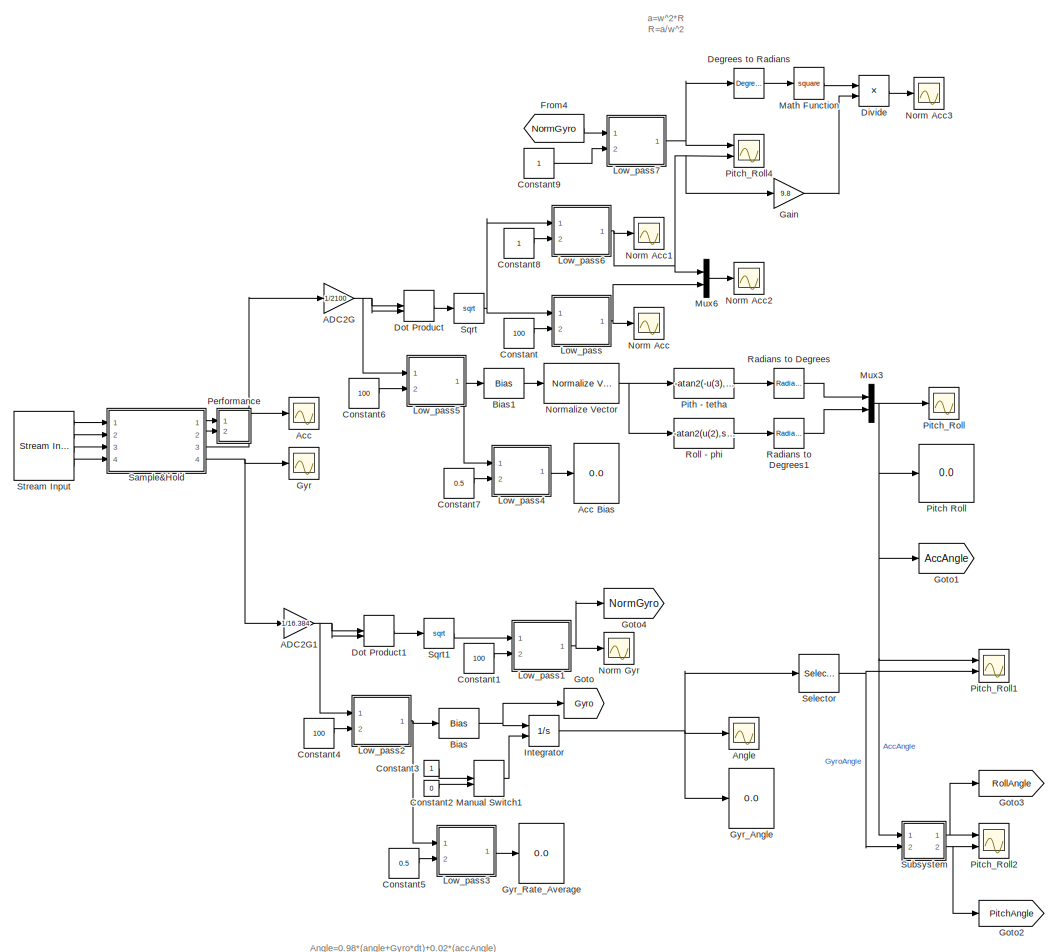
[diagram: root canvas - part 1/2, most of the canvas]
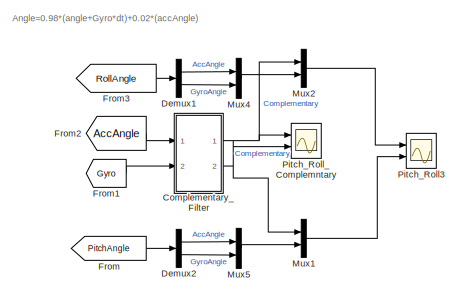
[diagram: root canvas - part 2/2, bottom center region]
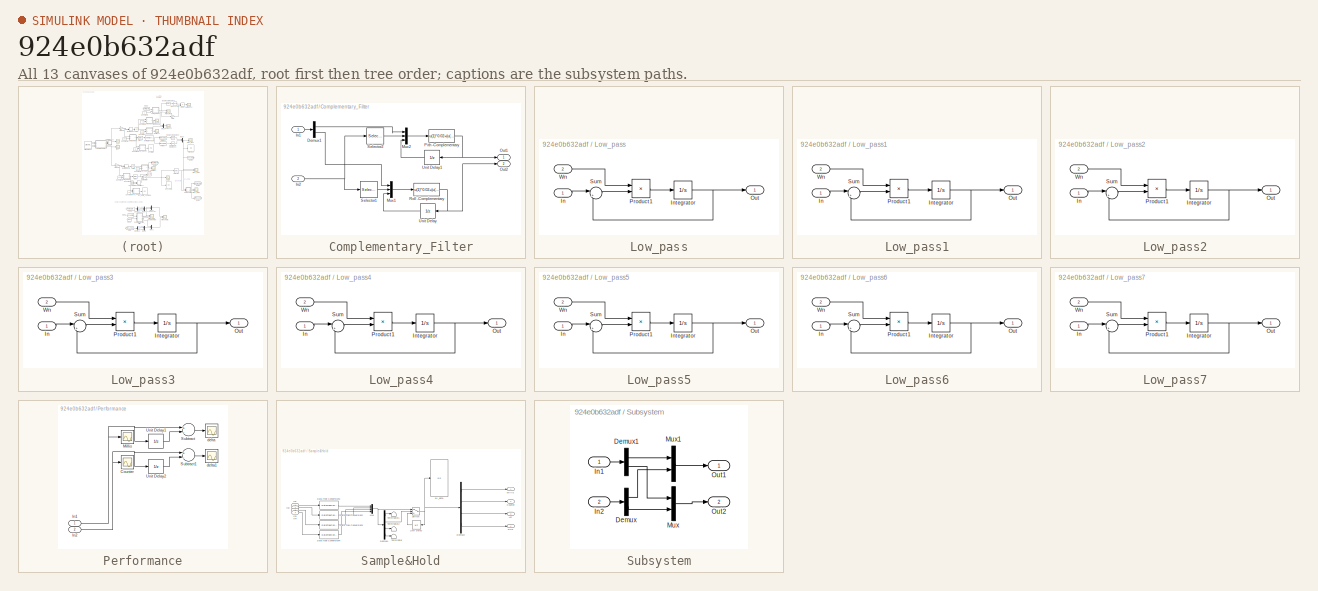
[diagram: thumbnail index - all 13 canvases of the model, root first then tree order]
MODEL slx_924e0b632adf
KIND model
CONFIG AbsTol = auto
CONFIG FixedStep = 0.002
CONFIG MaxStep = auto
CONFIG MinStep = auto
CONFIG RelTol = 1e-3
CONFIG SampleTimeConstraint = Unconstrained
CONFIG Solver = ode4
CONFIG SolverMode = Auto
CONFIG SolverName = ode4
CONFIG StartTime = 0.0
CONFIG StopTime = inf
BLOCK [Gain] ADC2G
  Gain = 1/2100
  OutDataTypeStr = Inherit: Inherit via internal rule
  ParamDataTypeStr = Inherit: Inherit via internal rule
  SaturateOnIntegerOverflow = off
BLOCK [Gain] ADC2G1
  Gain = 1/16.384
  OutDataTypeStr = Inherit: Inherit via internal rule
  ParamDataTypeStr = Inherit: Inherit via internal rule
  SaturateOnIntegerOverflow = off
BLOCK [Scope] Acc
  DataFormat = StructureWithTime
  Floating = off
  LimitDataPoints = off
  NumInputPorts = 1
  Ports = [1]
  SampleTime = 0
  TimeRange = 10
  YMax = 8300
  YMin = -8300
  ZoomMode = xonly
BLOCK [Display] Acc Bias
  Decimation = 1
  Ports = [1]
BLOCK [Scope] Angle
  DataFormat = StructureWithTime
  Floating = off
  LimitDataPoints = off
  NumInputPorts = 1
  Ports = [1]
  SampleTime = 0
  SaveName = ScopeData8
  TimeRange = 10
  YMax = 720
  YMin = -720
  ZoomMode = xonly
BLOCK [Bias] Bias
  Bias = [-5.545 -0.625 4.410]
  SaturateOnIntegerOverflow = off
BLOCK [Bias] Bias1
  Bias = [0 0.035 0.126]
  SaturateOnIntegerOverflow = off
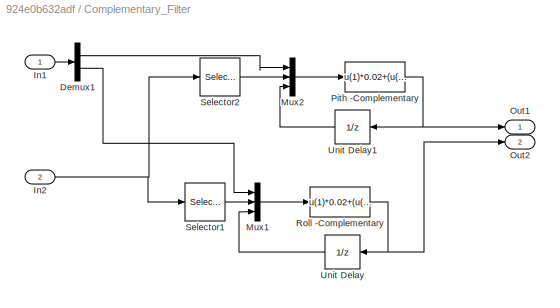
BLOCK [SubSystem] Complementary_Filter
  Ports = [2, 2]
  RequestExecContextInheritance = off
BLOCK [Demux] Complementary_Filter/Demux1
  DisplayOption = bar
  Outputs = 2
  Ports = [1, 2]
BLOCK [Inport] Complementary_Filter/In1
  IconDisplay = Port number
BLOCK [Inport] Complementary_Filter/In2
  IconDisplay = Port number
  Port = 2
BLOCK [Mux] Complementary_Filter/Mux1
  DisplayOption = bar
  Inputs = [1 1 1]
  Ports = [3, 1]
BLOCK [Mux] Complementary_Filter/Mux2
  DisplayOption = bar
  Inputs = [1 1 1]
  Ports = [3, 1]
BLOCK [Outport] Complementary_Filter/Out1
  IconDisplay = Port number
BLOCK [Outport] Complementary_Filter/Out2
  IconDisplay = Port number
  Port = 2
BLOCK [Fcn] Complementary_Filter/Pith -Complementary
  Expr = u(1)*0.02+(u(2)*0.002+u(3))*0.98
BLOCK [Fcn] Complementary_Filter/Roll -Complementary
  Expr = u(1)*0.02+(u(2)*0.002+u(3))*0.98
BLOCK [Selector] Complementary_Filter/Selector1
  Indices = [3]
  InputPortWidth = 3
  Ports = [1, 1]
BLOCK [Selector] Complementary_Filter/Selector2
  Indices = [2]
  InputPortWidth = 3
  Ports = [1, 1]
BLOCK [UnitDelay] Complementary_Filter/Unit Delay
  SampleTime = -1
BLOCK [UnitDelay] Complementary_Filter/Unit Delay1
  SampleTime = -1
BLOCK [Constant] Constant
  Value = 100
BLOCK [Constant] Constant1
  Value = 100
BLOCK [Constant] Constant2
  Value = 0
BLOCK [Constant] Constant3
BLOCK [Constant] Constant4
  Value = 100
BLOCK [Constant] Constant5
  Value = 0.5
BLOCK [Constant] Constant6
  Value = 100
BLOCK [Constant] Constant7
  Value = 0.5
BLOCK [Constant] Constant8
BLOCK [Constant] Constant9
BLOCK [Reference] Degrees to Radians  REF=simulink_extras/Transformations/Degrees to
Radians
  Ports = [1, 1]
  SourceBlock = simulink_extras/Transformations/Degrees to\nRadians
  SourceType = DegreesToRadians
BLOCK [Demux] Demux1
  DisplayOption = bar
  Outputs = 2
  Ports = [1, 2]
BLOCK [Demux] Demux2
  DisplayOption = bar
  Outputs = 2
  Ports = [1, 2]
BLOCK [Product] Divide
  InputSameDT = off
  Inputs = /*
  OutDataTypeStr = Inherit: Inherit via internal rule
  Ports = [2, 1]
  RndMeth = Floor
  SaturateOnIntegerOverflow = off
BLOCK [DotProduct] Dot Product
  OutDataTypeStr = Inherit: Inherit via internal rule
BLOCK [DotProduct] Dot Product1
  OutDataTypeStr = Inherit: Inherit via internal rule
BLOCK [From] From
  GotoTag = PitchAngle
BLOCK [From] From1
  GotoTag = Gyro
BLOCK [From] From2
  GotoTag = AccAngle
BLOCK [From] From3
  GotoTag = RollAngle
BLOCK [From] From4
  GotoTag = NormGyro
BLOCK [Gain] Gain
  Gain = 9.8
  OutDataTypeStr = Inherit: Inherit via internal rule
  ParamDataTypeStr = Inherit: Inherit via internal rule
  SaturateOnIntegerOverflow = off
BLOCK [Goto] Goto
  GotoTag = Gyro
BLOCK [Goto] Goto1
  GotoTag = AccAngle
BLOCK [Goto] Goto2
  GotoTag = PitchAngle
BLOCK [Goto] Goto3
  GotoTag = RollAngle
BLOCK [Goto] Goto4
  GotoTag = NormGyro
BLOCK [Scope] Gyr
  DataFormat = StructureWithTime
  Floating = off
  LimitDataPoints = off
  NumInputPorts = 1
  Ports = [1]
  SampleTime = 0
  SaveName = ScopeData1
  TimeRange = 10
  YMax = 35000
  YMin = -22500
  ZoomMode = xonly
BLOCK [Display] Gyr_Angle
  Decimation = 1
  Ports = [1]
BLOCK [Display] Gyr_Rate_Average
  Decimation = 1
  Ports = [1]
BLOCK [Integrator] Integrator
  ExternalReset = rising
  Ports = [2, 1]
BLOCK [SubSystem] Low_pass
  Ports = [2, 1]
  RequestExecContextInheritance = off
BLOCK [Inport] Low_pass/In
  IconDisplay = Port number
BLOCK [Integrator] Low_pass/Integrator
  Ports = [1, 1]
BLOCK [Outport] Low_pass/Out
  IconDisplay = Port number
BLOCK [Product] Low_pass/Product1
  InputSameDT = off
  OutDataTypeStr = Inherit: Inherit via internal rule
  Ports = [2, 1]
  SaturateOnIntegerOverflow = off
BLOCK [Sum] Low_pass/Sum
  IconShape = round
  InputSameDT = off
  Inputs = |+-
  OutDataTypeStr = Inherit: Inherit via internal rule
  Ports = [2, 1]
  SaturateOnIntegerOverflow = off
BLOCK [Inport] Low_pass/Wn
  IconDisplay = Port number
  Port = 2
BLOCK [SubSystem] Low_pass1
  Ports = [2, 1]
  RequestExecContextInheritance = off
BLOCK [Inport] Low_pass1/In
  IconDisplay = Port number
BLOCK [Integrator] Low_pass1/Integrator
  Ports = [1, 1]
BLOCK [Outport] Low_pass1/Out
  IconDisplay = Port number
BLOCK [Product] Low_pass1/Product1
  InputSameDT = off
  OutDataTypeStr = Inherit: Inherit via internal rule
  Ports = [2, 1]
  SaturateOnIntegerOverflow = off
BLOCK [Sum] Low_pass1/Sum
  IconShape = round
  InputSameDT = off
  Inputs = |+-
  OutDataTypeStr = Inherit: Inherit via internal rule
  Ports = [2, 1]
  SaturateOnIntegerOverflow = off
BLOCK [Inport] Low_pass1/Wn
  IconDisplay = Port number
  Port = 2
BLOCK [SubSystem] Low_pass2
  Ports = [2, 1]
  RequestExecContextInheritance = off
BLOCK [Inport] Low_pass2/In
  IconDisplay = Port number
BLOCK [Integrator] Low_pass2/Integrator
  Ports = [1, 1]
BLOCK [Outport] Low_pass2/Out
  IconDisplay = Port number
BLOCK [Product] Low_pass2/Product1
  InputSameDT = off
  OutDataTypeStr = Inherit: Inherit via internal rule
  Ports = [2, 1]
  SaturateOnIntegerOverflow = off
BLOCK [Sum] Low_pass2/Sum
  IconShape = round
  InputSameDT = off
  Inputs = |+-
  OutDataTypeStr = Inherit: Inherit via internal rule
  Ports = [2, 1]
  SaturateOnIntegerOverflow = off
BLOCK [Inport] Low_pass2/Wn
  IconDisplay = Port number
  Port = 2
BLOCK [SubSystem] Low_pass3
  Ports = [2, 1]
  RequestExecContextInheritance = off
BLOCK [Inport] Low_pass3/In
  IconDisplay = Port number
BLOCK [Integrator] Low_pass3/Integrator
  Ports = [1, 1]
BLOCK [Outport] Low_pass3/Out
  IconDisplay = Port number
BLOCK [Product] Low_pass3/Product1
  InputSameDT = off
  OutDataTypeStr = Inherit: Inherit via internal rule
  Ports = [2, 1]
  SaturateOnIntegerOverflow = off
BLOCK [Sum] Low_pass3/Sum
  IconShape = round
  InputSameDT = off
  Inputs = |+-
  OutDataTypeStr = Inherit: Inherit via internal rule
  Ports = [2, 1]
  SaturateOnIntegerOverflow = off
BLOCK [Inport] Low_pass3/Wn
  IconDisplay = Port number
  Port = 2
BLOCK [SubSystem] Low_pass4
  Ports = [2, 1]
  RequestExecContextInheritance = off
BLOCK [Inport] Low_pass4/In
  IconDisplay = Port number
BLOCK [Integrator] Low_pass4/Integrator
  Ports = [1, 1]
BLOCK [Outport] Low_pass4/Out
  IconDisplay = Port number
BLOCK [Product] Low_pass4/Product1
  InputSameDT = off
  OutDataTypeStr = Inherit: Inherit via internal rule
  Ports = [2, 1]
  SaturateOnIntegerOverflow = off
BLOCK [Sum] Low_pass4/Sum
  IconShape = round
  InputSameDT = off
  Inputs = |+-
  OutDataTypeStr = Inherit: Inherit via internal rule
  Ports = [2, 1]
  SaturateOnIntegerOverflow = off
BLOCK [Inport] Low_pass4/Wn
  IconDisplay = Port number
  Port = 2
BLOCK [SubSystem] Low_pass5
  Ports = [2, 1]
  RequestExecContextInheritance = off
BLOCK [Inport] Low_pass5/In
  IconDisplay = Port number
BLOCK [Integrator] Low_pass5/Integrator
  Ports = [1, 1]
BLOCK [Outport] Low_pass5/Out
  IconDisplay = Port number
BLOCK [Product] Low_pass5/Product1
  InputSameDT = off
  OutDataTypeStr = Inherit: Inherit via internal rule
  Ports = [2, 1]
  SaturateOnIntegerOverflow = off
BLOCK [Sum] Low_pass5/Sum
  IconShape = round
  InputSameDT = off
  Inputs = |+-
  OutDataTypeStr = Inherit: Inherit via internal rule
  Ports = [2, 1]
  SaturateOnIntegerOverflow = off
BLOCK [Inport] Low_pass5/Wn
  IconDisplay = Port number
  Port = 2
BLOCK [SubSystem] Low_pass6
  Ports = [2, 1]
  RequestExecContextInheritance = off
BLOCK [Inport] Low_pass6/In
  IconDisplay = Port number
BLOCK [Integrator] Low_pass6/Integrator
  Ports = [1, 1]
BLOCK [Outport] Low_pass6/Out
  IconDisplay = Port number
BLOCK [Product] Low_pass6/Product1
  InputSameDT = off
  OutDataTypeStr = Inherit: Inherit via internal rule
  Ports = [2, 1]
  SaturateOnIntegerOverflow = off
BLOCK [Sum] Low_pass6/Sum
  IconShape = round
  InputSameDT = off
  Inputs = |+-
  OutDataTypeStr = Inherit: Inherit via internal rule
  Ports = [2, 1]
  SaturateOnIntegerOverflow = off
BLOCK [Inport] Low_pass6/Wn
  IconDisplay = Port number
  Port = 2
BLOCK [SubSystem] Low_pass7
  Ports = [2, 1]
  RequestExecContextInheritance = off
BLOCK [Inport] Low_pass7/In
  IconDisplay = Port number
BLOCK [Integrator] Low_pass7/Integrator
  Ports = [1, 1]
BLOCK [Outport] Low_pass7/Out
  IconDisplay = Port number
BLOCK [Product] Low_pass7/Product1
  InputSameDT = off
  OutDataTypeStr = Inherit: Inherit via internal rule
  Ports = [2, 1]
  SaturateOnIntegerOverflow = off
BLOCK [Sum] Low_pass7/Sum
  IconShape = round
  InputSameDT = off
  Inputs = |+-
  OutDataTypeStr = Inherit: Inherit via internal rule
  Ports = [2, 1]
  SaturateOnIntegerOverflow = off
BLOCK [Inport] Low_pass7/Wn
  IconDisplay = Port number
  Port = 2
BLOCK [ManualSwitch] Manual Switch1
BLOCK [Math] Math Function
  Operator = square
  Ports = [1, 1]
BLOCK [Mux] Mux1
  DisplayOption = bar
  Inputs = 2
  Ports = [2, 1]
BLOCK [Mux] Mux2
  DisplayOption = bar
  Inputs = 2
  Ports = [2, 1]
BLOCK [Mux] Mux3
  DisplayOption = bar
  Inputs = 2
  Ports = [2, 1]
BLOCK [Mux] Mux4
  DisplayOption = bar
  Inputs = 2
  Ports = [2, 1]
BLOCK [Mux] Mux5
  DisplayOption = bar
  Inputs = 2
  Ports = [2, 1]
BLOCK [Mux] Mux6
  DisplayOption = bar
  Inputs = 2
  Ports = [2, 1]
BLOCK [Scope] Norm Acc
  DataFormat = StructureWithTime
  Floating = off
  LimitDataPoints = off
  NumInputPorts = 1
  Ports = [1]
  SampleTime = 0
  SaveName = ScopeData6
  TimeRange = 10
  YMax = 10
  YMin = 0
  ZoomMode = xonly
BLOCK [Scope] Norm Acc1
  DataFormat = StructureWithTime
  Floating = off
  LimitDataPoints = off
  NumInputPorts = 1
  Ports = [1]
  SampleTime = 0
  SaveName = ScopeData14
  TimeRange = 10
  YMax = 10
  YMin = 0
  ZoomMode = xonly
BLOCK [Scope] Norm Acc2
  DataFormat = StructureWithTime
  Floating = off
  LimitDataPoints = off
  NumInputPorts = 1
  Ports = [1]
  SampleTime = 0
  SaveName = ScopeData15
  TimeRange = 10
  YMax = 16
  YMin = 0
  ZoomMode = xonly
BLOCK [Scope] Norm Acc3
  DataFormat = StructureWithTime
  Floating = off
  LimitDataPoints = off
  NumInputPorts = 1
  Ports = [1]
  SampleTime = 0
  SaveName = ScopeData17
  TimeRange = 10
  YMax = 0.75
  YMin = 0
  ZoomMode = xonly
BLOCK [Scope] Norm Gyr
  DataFormat = StructureWithTime
  Floating = off
  LimitDataPoints = off
  NumInputPorts = 1
  Ports = [1]
  SampleTime = 0
  SaveName = ScopeData7
  TimeRange = 10
  YMax = 3500
  YMin = 0
  ZoomMode = xonly
BLOCK [Reference] Normalize Vector  REF=vrlib/Utilities/Normalize Vector
  Ports = [1, 1]
  SourceBlock = vrlib/Utilities/Normalize Vector
  SourceType = Normalize Vector
  maxzero = 0
BLOCK [SubSystem] Performance
  Ports = [2]
  RequestExecContextInheritance = off
BLOCK [Scope] Performance/Counter
  DataFormat = StructureWithTime
  Floating = off
  LimitDataPoints = off
  NumInputPorts = 1
  Ports = [1]
  SampleTime = 0
  SaveName = ScopeData3
  TimeRange = 10
  YMax = 1800
  YMin = 1150
  ZoomMode = xonly
BLOCK [Inport] Performance/In1
  IconDisplay = Port number
BLOCK [Inport] Performance/In2
  IconDisplay = Port number
  Port = 2
BLOCK [Scope] Performance/Millis
  DataFormat = StructureWithTime
  Floating = off
  LimitDataPoints = off
  NumInputPorts = 1
  Ports = [1]
  SampleTime = 0
  SaveName = ScopeData2
  TimeRange = 10
  YMax = 3583330
  YMin = 3183240
  ZoomMode = xonly
BLOCK [Sum] Performance/Subtract
  InputSameDT = off
  Inputs = +-
  OutDataTypeStr = Inherit: Inherit via internal rule
  Ports = [2, 1]
  SaturateOnIntegerOverflow = off
BLOCK [Sum] Performance/Subtract1
  InputSameDT = off
  Inputs = +-
  OutDataTypeStr = Inherit: Inherit via internal rule
  Ports = [2, 1]
  SaturateOnIntegerOverflow = off
BLOCK [UnitDelay] Performance/Unit Delay1
  SampleTime = -1
BLOCK [UnitDelay] Performance/Unit Delay2
  SampleTime = -1
BLOCK [Scope] Performance/delta
  DataFormat = StructureWithTime
  Floating = off
  LimitDataPoints = off
  NumInputPorts = 1
  Ports = [1]
  SampleTime = 0
  SaveName = ScopeData4
  TimeRange = 10
  YMax = 25
  YMin = 0
  ZoomMode = xonly
BLOCK [Scope] Performance/delta1
  DataFormat = StructureWithTime
  Floating = off
  LimitDataPoints = off
  NumInputPorts = 1
  Ports = [1]
  SampleTime = 0
  SaveName = ScopeData5
  TimeRange = 10
  YMax = 2
  YMin = 0
  ZoomMode = xonly
BLOCK [Display] Pitch Roll
  Decimation = 1
  Ports = [1]
BLOCK [Scope] Pitch_Roll
  Floating = off
  MaxDataPoints = 50000
  NumInputPorts = 1
  Ports = [1]
  SampleTime = 0
  SaveName = ScopeData9
  YMax = 90
  YMin = -90
BLOCK [Scope] Pitch_Roll1
  Floating = off
  MaxDataPoints = 50000
  NumInputPorts = 2
  Ports = [2]
  SampleTime = 0
  SaveName = ScopeData10
  YMax = 180~180
  YMin = -180~-180
BLOCK [Scope] Pitch_Roll2
  Floating = off
  MaxDataPoints = 50000
  NumInputPorts = 2
  Ports = [2]
  SampleTime = 0
  SaveName = ScopeData11
  YMax = 180~180
  YMin = -180~-180
BLOCK [Scope] Pitch_Roll3
  Floating = off
  LegendLocations = 0.78019      0.8805    0.069792    0.050113\n0.78019     0.41006    0.069792    0.050113
  MaxDataPoints = 50000
  NumInputPorts = 2
  Ports = [2]
  SampleTime = 0
  SaveName = ScopeData13
  ShowLegends = on
  YMax = 250~250
  YMin = -250~-250
BLOCK [Scope] Pitch_Roll4
  Floating = off
  MaxDataPoints = 50000
  NumInputPorts = 2
  Ports = [2]
  SampleTime = 0
  SaveName = ScopeData16
  YMax = 2000~16
  YMin = 0~0
BLOCK [Scope] Pitch_Roll_Complemntary
  Floating = off
  MaxDataPoints = 50000
  NumInputPorts = 2
  Ports = [2]
  SampleTime = 0
  SaveName = ScopeData12
  YMax = 180~180
  YMin = -180~-180
BLOCK [Fcn] Pith - tetha
  Expr = -atan2(-u(3),sqrt(u(2)^2+u(1)^2))
BLOCK [Reference] Radians to Degrees  REF=simulink_extras/Transformations/Radians
to Degrees
  Ports = [1, 1]
  SourceBlock = simulink_extras/Transformations/Radians\nto Degrees
  SourceType = RadiansToDegrees
BLOCK [Reference] Radians to Degrees1  REF=simulink_extras/Transformations/Radians
to Degrees
  Ports = [1, 1]
  SourceBlock = simulink_extras/Transformations/Radians\nto Degrees
  SourceType = RadiansToDegrees
BLOCK [Fcn] Roll - phi
  Expr = -atan2(u(2),sqrt(u(1)^2+0.01*u(3)^2))
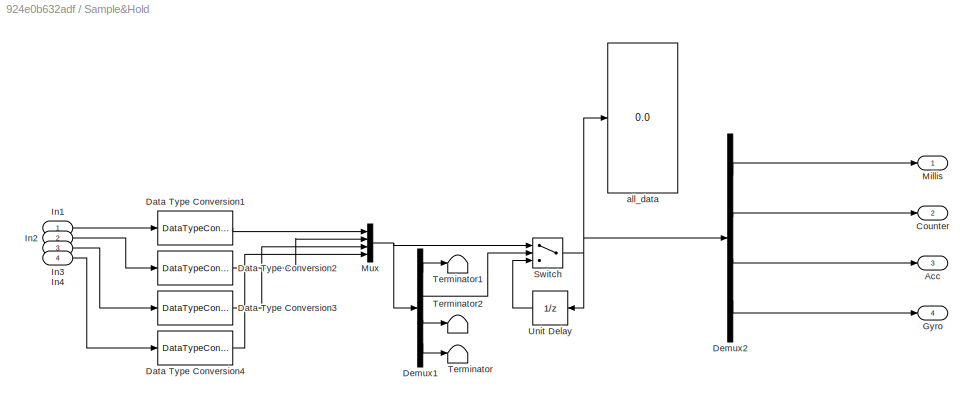
BLOCK [SubSystem] Sample&Hold
  Ports = [4, 4]
  RequestExecContextInheritance = off
BLOCK [Outport] Sample&Hold/Acc
  IconDisplay = Port number
  Port = 3
BLOCK [Outport] Sample&Hold/Counter
  IconDisplay = Port number
  Port = 2
BLOCK [DataTypeConversion] Sample&Hold/Data Type Conversion1
  RndMeth = Floor
  SaturateOnIntegerOverflow = off
BLOCK [DataTypeConversion] Sample&Hold/Data Type Conversion2
  RndMeth = Floor
  SaturateOnIntegerOverflow = off
BLOCK [DataTypeConversion] Sample&Hold/Data Type Conversion3
  RndMeth = Floor
  SaturateOnIntegerOverflow = off
BLOCK [DataTypeConversion] Sample&Hold/Data Type Conversion4
  RndMeth = Floor
  SaturateOnIntegerOverflow = off
BLOCK [Demux] Sample&Hold/Demux1
  DisplayOption = bar
  Outputs = [1,1,3,3]
  Ports = [1, 4]
BLOCK [Demux] Sample&Hold/Demux2
  DisplayOption = bar
  Outputs = [1,1,3,3]
  Ports = [1, 4]
BLOCK [Outport] Sample&Hold/Gyro
  IconDisplay = Port number
  Port = 4
BLOCK [Inport] Sample&Hold/In1
  IconDisplay = Port number
BLOCK [Inport] Sample&Hold/In2
  IconDisplay = Port number
  Port = 2
BLOCK [Inport] Sample&Hold/In3
  IconDisplay = Port number
  Port = 3
BLOCK [Inport] Sample&Hold/In4
  IconDisplay = Port number
  Port = 4
BLOCK [Outport] Sample&Hold/Millis
  IconDisplay = Port number
BLOCK [Mux] Sample&Hold/Mux
  DisplayOption = bar
  Inputs = [1,1,3,3]
  Ports = [4, 1]
BLOCK [Switch] Sample&Hold/Switch
  Criteria = u2 ~= 0
  InputSameDT = off
  SaturateOnIntegerOverflow = off
BLOCK [Terminator] Sample&Hold/Terminator
BLOCK [Terminator] Sample&Hold/Terminator1
BLOCK [Terminator] Sample&Hold/Terminator2
BLOCK [UnitDelay] Sample&Hold/Unit Delay
  SampleTime = -1
BLOCK [Display] Sample&Hold/all_data
  Decimation = 1
  Ports = [1]
BLOCK [Selector] Selector
  Indices = [2 3]
  InputPortWidth = 3
  Ports = [1, 1]
BLOCK [Sqrt] Sqrt
BLOCK [Sqrt] Sqrt1
BLOCK [Reference] Stream Input  REF=sldrtlib/Stream Input
  AttributesFormatString = Standard Devices\nSerial Port [11h]
  DataTypes = {'uint32','uint16','3*int16','3*int16'}
  DrvAddress = 17
  DrvName = Standard_Devices/Serial_Port
  DrvOptions = [115200 8 0 0 0 0 0 0]
  FormatString = 'MSG: %d,%d,%d,%d,%d,%d,%d,%d'
  MaxMissedTicks = 100
  Ports = [0, 4]
  SampleTime = 0.002
  ShowError = off
  ShowMissedTicks = off
  ShowReady = off
  SourceBlock = sldrtlib/Stream Input
  SourceType = Simulink Desktop Real-Time Stream Input
  Terminator = {'\r', '\n'}
  YieldWhenWaiting = off
BLOCK [SubSystem] Subsystem
  Ports = [2, 2]
  RequestExecContextInheritance = off
BLOCK [Demux] Subsystem/Demux
  DisplayOption = bar
  Outputs = 2
  Ports = [1, 2]
BLOCK [Demux] Subsystem/Demux1
  DisplayOption = bar
  Outputs = 2
  Ports = [1, 2]
BLOCK [Inport] Subsystem/In1
  IconDisplay = Port number
BLOCK [Inport] Subsystem/In2
  IconDisplay = Port number
  Port = 2
BLOCK [Mux] Subsystem/Mux
  DisplayOption = bar
  Inputs = 2
  Ports = [2, 1]
BLOCK [Mux] Subsystem/Mux1
  DisplayOption = bar
  Inputs = 2
  Ports = [2, 1]
BLOCK [Outport] Subsystem/Out1
  IconDisplay = Port number
BLOCK [Outport] Subsystem/Out2
  IconDisplay = Port number
  Port = 2
ANNOTATION (root): Angle=0.98*(angle+Gyro*dt)+0.02*(accAngle)
ANNOTATION (root): a=w^2*R R=a/w^2
NET ADC2G1:1 -> Dot Product1:1, Dot Product1:2, Low_pass2:1
NET ADC2G:1 -> Dot Product:1, Dot Product:2, Low_pass5:1
LINE Bias1:1 -> Normalize Vector:1
NET Bias:1 -> Goto:1, Integrator:1
LINE Complementary_Filter/Demux1:1 -> Complementary_Filter/Mux2:1
LINE Complementary_Filter/Demux1:2 -> Complementary_Filter/Mux1:1
LINE Complementary_Filter/In1:1 -> Complementary_Filter/Demux1:1
NET Complementary_Filter/In2:1 -> Complementary_Filter/Selector1:1, Complementary_Filter/Selector2:1
LINE Complementary_Filter/Mux1:1 -> Complementary_Filter/Roll -Complementary:1
LINE Complementary_Filter/Mux2:1 -> Complementary_Filter/Pith -Complementary:1
NET Complementary_Filter/Pith -Complementary:1 -> Complementary_Filter/Out1:1, Complementary_Filter/Unit Delay1:1
NET Complementary_Filter/Roll -Complementary:1 -> Complementary_Filter/Out2:1, Complementary_Filter/Unit Delay:1
LINE Complementary_Filter/Selector1:1 -> Complementary_Filter/Mux1:2
LINE Complementary_Filter/Selector2:1 -> Complementary_Filter/Mux2:2
LINE Complementary_Filter/Unit Delay1:1 -> Complementary_Filter/Mux2:3
LINE Complementary_Filter/Unit Delay:1 -> Complementary_Filter/Mux1:3
NET Complementary_Filter:1 -> Mux2:1, Pitch_Roll_Complemntary:1
NET Complementary_Filter:2 -> Mux1:1, Pitch_Roll_Complemntary:2
LINE Constant1:1 -> Low_pass1:2
LINE Constant2:1 -> Manual Switch1:2
LINE Constant3:1 -> Manual Switch1:1
LINE Constant4:1 -> Low_pass2:2
LINE Constant5:1 -> Low_pass3:2
LINE Constant6:1 -> Low_pass5:2
LINE Constant7:1 -> Low_pass4:2
LINE Constant8:1 -> Low_pass6:2
LINE Constant9:1 -> Low_pass7:2
LINE Constant:1 -> Low_pass:2
LINE Degrees to Radians:1 -> Math Function:1
LINE Demux1:1 -> Mux4:1
LINE Demux1:2 -> Mux4:2
LINE Demux2:1 -> Mux5:1
LINE Demux2:2 -> Mux5:2
LINE Divide:1 -> Norm Acc3:1
LINE Dot Product1:1 -> Sqrt1:1
LINE Dot Product:1 -> Sqrt:1
LINE From1:1 -> Complementary_Filter:2
LINE From2:1 -> Complementary_Filter:1
LINE From3:1 -> Demux1:1
LINE From4:1 -> Low_pass7:1
LINE From:1 -> Demux2:1
LINE Gain:1 -> Divide:2
NET Integrator:1 -> Angle:1, Gyr_Angle:1, Selector:1
LINE Low_pass/In:1 -> Low_pass/Sum:1
NET Low_pass/Integrator:1 -> Low_pass/Out:1, Low_pass/Sum:2
LINE Low_pass/Product1:1 -> Low_pass/Integrator:1
LINE Low_pass/Sum:1 -> Low_pass/Product1:2
LINE Low_pass/Wn:1 -> Low_pass/Product1:1
LINE Low_pass1/In:1 -> Low_pass1/Sum:1
NET Low_pass1/Integrator:1 -> Low_pass1/Out:1, Low_pass1/Sum:2
LINE Low_pass1/Product1:1 -> Low_pass1/Integrator:1
LINE Low_pass1/Sum:1 -> Low_pass1/Product1:2
LINE Low_pass1/Wn:1 -> Low_pass1/Product1:1
NET Low_pass1:1 -> Goto4:1, Norm Gyr:1
LINE Low_pass2/In:1 -> Low_pass2/Sum:1
NET Low_pass2/Integrator:1 -> Low_pass2/Out:1, Low_pass2/Sum:2
LINE Low_pass2/Product1:1 -> Low_pass2/Integrator:1
LINE Low_pass2/Sum:1 -> Low_pass2/Product1:2
LINE Low_pass2/Wn:1 -> Low_pass2/Product1:1
NET Low_pass2:1 -> Bias:1, Low_pass3:1
LINE Low_pass3/In:1 -> Low_pass3/Sum:1
NET Low_pass3/Integrator:1 -> Low_pass3/Out:1, Low_pass3/Sum:2
LINE Low_pass3/Product1:1 -> Low_pass3/Integrator:1
LINE Low_pass3/Sum:1 -> Low_pass3/Product1:2
LINE Low_pass3/Wn:1 -> Low_pass3/Product1:1
LINE Low_pass3:1 -> Gyr_Rate_Average:1
LINE Low_pass4/In:1 -> Low_pass4/Sum:1
NET Low_pass4/Integrator:1 -> Low_pass4/Out:1, Low_pass4/Sum:2
LINE Low_pass4/Product1:1 -> Low_pass4/Integrator:1
LINE Low_pass4/Sum:1 -> Low_pass4/Product1:2
LINE Low_pass4/Wn:1 -> Low_pass4/Product1:1
LINE Low_pass4:1 -> Acc Bias:1
LINE Low_pass5/In:1 -> Low_pass5/Sum:1
NET Low_pass5/Integrator:1 -> Low_pass5/Out:1, Low_pass5/Sum:2
LINE Low_pass5/Product1:1 -> Low_pass5/Integrator:1
LINE Low_pass5/Sum:1 -> Low_pass5/Product1:2
LINE Low_pass5/Wn:1 -> Low_pass5/Product1:1
NET Low_pass5:1 -> Bias1:1, Low_pass4:1
LINE Low_pass6/In:1 -> Low_pass6/Sum:1
NET Low_pass6/Integrator:1 -> Low_pass6/Out:1, Low_pass6/Sum:2
LINE Low_pass6/Product1:1 -> Low_pass6/Integrator:1
LINE Low_pass6/Sum:1 -> Low_pass6/Product1:2
LINE Low_pass6/Wn:1 -> Low_pass6/Product1:1
NET Low_pass6:1 -> Gain:1, Mux6:1, Norm Acc1:1, Pitch_Roll4:2
LINE Low_pass7/In:1 -> Low_pass7/Sum:1
NET Low_pass7/Integrator:1 -> Low_pass7/Out:1, Low_pass7/Sum:2
LINE Low_pass7/Product1:1 -> Low_pass7/Integrator:1
LINE Low_pass7/Sum:1 -> Low_pass7/Product1:2
LINE Low_pass7/Wn:1 -> Low_pass7/Product1:1
NET Low_pass7:1 -> Degrees to Radians:1, Pitch_Roll4:1
NET Low_pass:1 -> Mux6:2, Norm Acc:1
LINE Manual Switch1:1 -> Integrator:2
LINE Math Function:1 -> Divide:1
LINE Mux1:1 -> Pitch_Roll3:2
LINE Mux2:1 -> Pitch_Roll3:1
NET Mux3:1 -> Goto1:1, Pitch Roll:1, Pitch_Roll1:1, Pitch_Roll:1, Subsystem:1
LINE Mux4:1 -> Mux2:2
LINE Mux5:1 -> Mux1:2
LINE Mux6:1 -> Norm Acc2:1
NET Normalize Vector:1 -> Pith - tetha:1, Roll - phi:1
NET Performance/In1:1 -> Performance/Millis:1, Performance/Subtract:1, Performance/Unit Delay1:1
NET Performance/In2:1 -> Performance/Counter:1, Performance/Subtract1:1, Performance/Unit Delay2:1
LINE Performance/Subtract1:1 -> Performance/delta1:1
LINE Performance/Subtract:1 -> Performance/delta:1
LINE Performance/Unit Delay1:1 -> Performance/Subtract:2
LINE Performance/Unit Delay2:1 -> Performance/Subtract1:2
LINE Pith - tetha:1 -> Radians to Degrees:1
LINE Radians to Degrees1:1 -> Mux3:2
LINE Radians to Degrees:1 -> Mux3:1
LINE Roll - phi:1 -> Radians to Degrees1:1
LINE Sample&Hold/Data Type Conversion1:1 -> Sample&Hold/Mux:1
LINE Sample&Hold/Data Type Conversion2:1 -> Sample&Hold/Mux:2
LINE Sample&Hold/Data Type Conversion3:1 -> Sample&Hold/Mux:3
LINE Sample&Hold/Data Type Conversion4:1 -> Sample&Hold/Mux:4
LINE Sample&Hold/Demux1:1 -> Sample&Hold/Terminator1:1
LINE Sample&Hold/Demux1:2 -> Sample&Hold/Switch:2
LINE Sample&Hold/Demux1:3 -> Sample&Hold/Terminator2:1
LINE Sample&Hold/Demux1:4 -> Sample&Hold/Terminator:1
LINE Sample&Hold/Demux2:1 -> Sample&Hold/Millis:1
LINE Sample&Hold/Demux2:2 -> Sample&Hold/Counter:1
LINE Sample&Hold/Demux2:3 -> Sample&Hold/Acc:1
LINE Sample&Hold/Demux2:4 -> Sample&Hold/Gyro:1
LINE Sample&Hold/In1:1 -> Sample&Hold/Data Type Conversion1:1
LINE Sample&Hold/In2:1 -> Sample&Hold/Data Type Conversion2:1
LINE Sample&Hold/In3:1 -> Sample&Hold/Data Type Conversion3:1
LINE Sample&Hold/In4:1 -> Sample&Hold/Data Type Conversion4:1
NET Sample&Hold/Mux:1 -> Sample&Hold/Demux1:1, Sample&Hold/Switch:1
NET Sample&Hold/Switch:1 -> Sample&Hold/Demux2:1, Sample&Hold/Unit Delay:1, Sample&Hold/all_data:1
LINE Sample&Hold/Unit Delay:1 -> Sample&Hold/Switch:3
LINE Sample&Hold:1 -> Performance:1
LINE Sample&Hold:2 -> Performance:2
NET Sample&Hold:3 -> ADC2G:1, Acc:1
NET Sample&Hold:4 -> ADC2G1:1, Gyr:1
NET Selector:1 -> Pitch_Roll1:2, Subsystem:2
LINE Sqrt1:1 -> Low_pass1:1
NET Sqrt:1 -> Low_pass6:1, Low_pass:1
LINE Stream Input:1 -> Sample&Hold:1
LINE Stream Input:2 -> Sample&Hold:2
LINE Stream Input:3 -> Sample&Hold:3
LINE Stream Input:4 -> Sample&Hold:4
LINE Subsystem/Demux1:1 -> Subsystem/Mux1:1
LINE Subsystem/Demux1:2 -> Subsystem/Mux:1
LINE Subsystem/Demux:1 -> Subsystem/Mux1:2
LINE Subsystem/Demux:2 -> Subsystem/Mux:2
LINE Subsystem/In1:1 -> Subsystem/Demux1:1
LINE Subsystem/In2:1 -> Subsystem/Demux:1
LINE Subsystem/Mux1:1 -> Subsystem/Out1:1
LINE Subsystem/Mux:1 -> Subsystem/Out2:1
NET Subsystem:1 -> Goto3:1, Pitch_Roll2:1
NET Subsystem:2 -> Goto2:1, Pitch_Roll2:2
note: NET lines group one-source signal fan-out (src -> all destinations, sorted); 1:1 wires keep LINE
